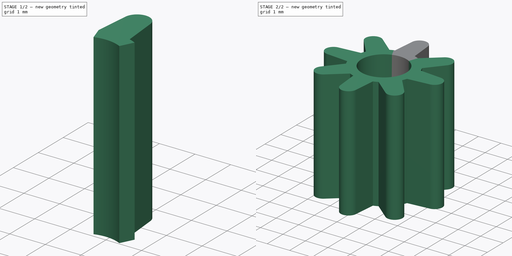
[diagram: build sequence overview — one tinted view per stage of 2, left to right]
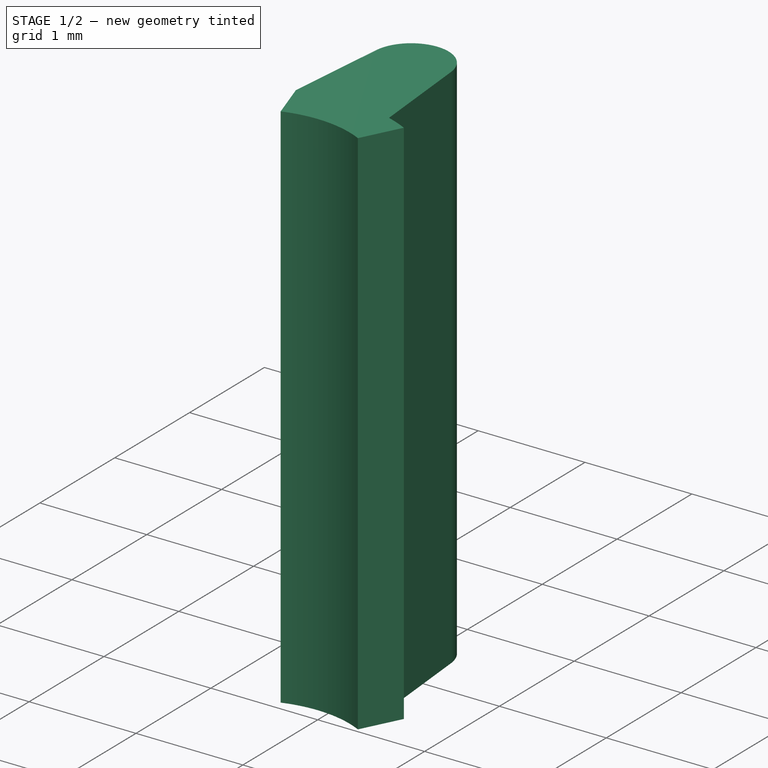
[diagram: stage 1 of 2 — iso view after this stage's code; geometry added in this stage tinted green]
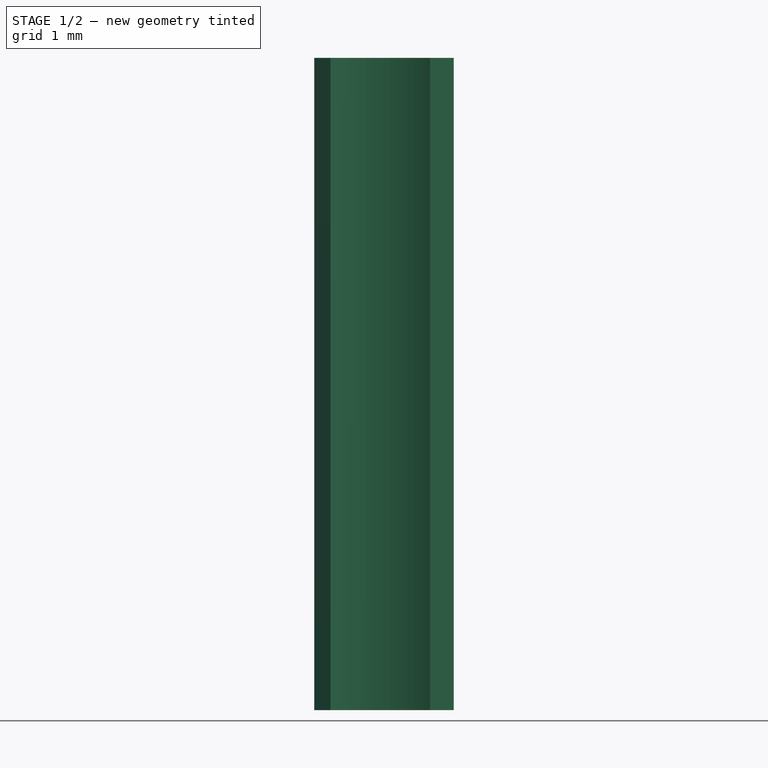
[diagram: stage 1 of 2 — front view after this stage's code; geometry added in this stage tinted green]
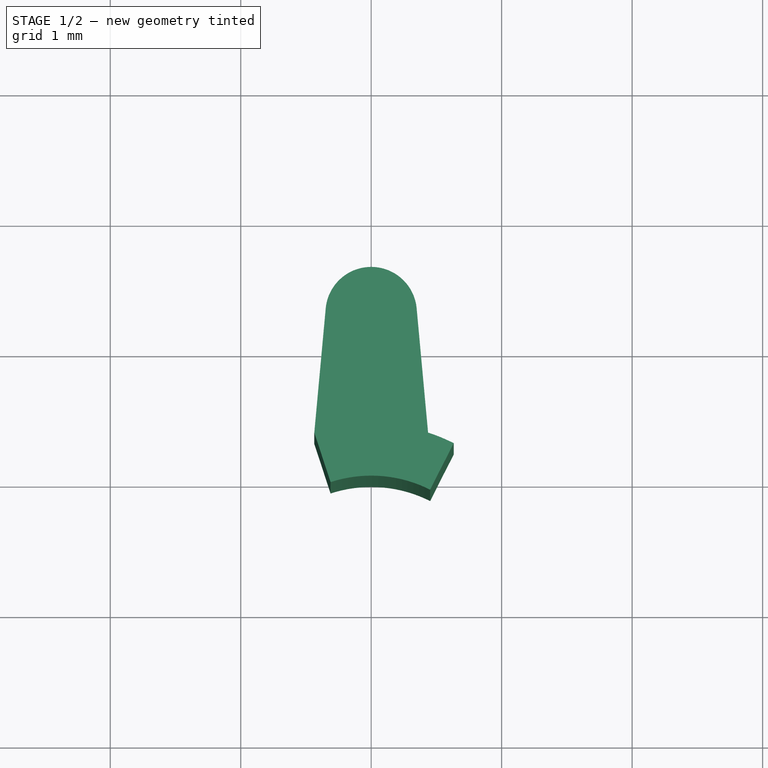
[diagram: stage 1 of 2 — top view after this stage's code; geometry added in this stage tinted green]
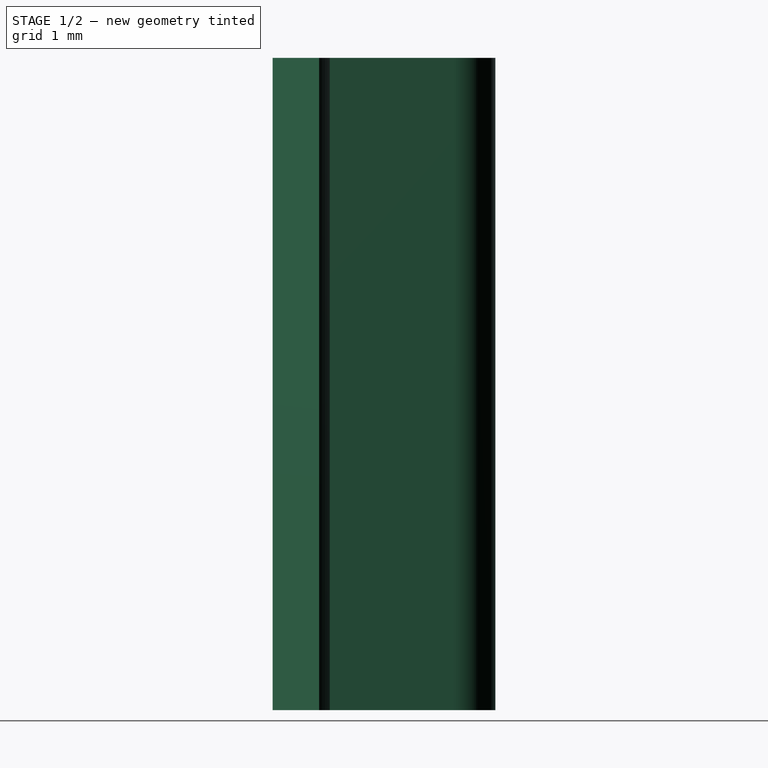
[diagram: stage 1 of 2 — right view after this stage's code; geometry added in this stage tinted green]
FCSTD DOCUMENT  (FreeCAD 0.20R29177 +426 (Git))
Label: Small Head Gear
License: All rights reserved
LicenseURL: http://en.wikipedia.org/wiki/All_rights_reserved
objects: Sketcher::SketchObject×1, PartDesign::Pad×1, PartDesign::PolarPattern×1, PartDesign::Body×1
note: 5 computed .brp shape members not serialized (recipe doc carries the construction recipe); baked Part::Feature solids carry a one-line shape summary decoded from their .brp

FEATURE [Sketcher::SketchObject] Sketch  label="Tooth Sketch"
  FullyConstrained = true
  MapMode = 5
  Support = -> [XY_Plane]
  sketch-geometry (9):
    g0: ArcOfCircle CenterX=0 CenterY=0 CenterZ=0 NormalX=0 NormalY=0 NormalZ=1 AngleXU=0 Radius=1 StartAngle=1.10208 EndAngle=1.88747
    g1: ArcOfCircle CenterX=0 CenterY=0 CenterZ=0 NormalX=0 NormalY=0 NormalZ=1 AngleXU=0 Radius=1.4 StartAngle=1.10208 EndAngle=1.25412
    g2: ArcOfCircle CenterX=0 CenterY=2.25 CenterZ=0 NormalX=0 NormalY=0 NormalZ=1 AngleXU=0 Radius=0.35 StartAngle=0.0916298 EndAngle=3.04996
    g3: LineSegment StartX=-0.348532 StartY=2.28203 StartZ=0 EndX=-0.435975 EndY=1.33039 EndZ=0
    g4: LineSegment StartX=0.348532 StartY=2.28203 StartZ=0 EndX=0.435975 EndY=1.33039 EndZ=0
    g5: LineSegment StartX=0 StartY=0 StartZ=0 EndX=-0.435975 EndY=1.33039 EndZ=0
    g6: LineSegment StartX=0 StartY=0 StartZ=0 EndX=0.632444 EndY=1.24901 EndZ=0
    g7: LineSegment StartX=-0.435975 StartY=1.33039 StartZ=0 EndX=-0.311411 EndY=0.950275 EndZ=0
    g8: LineSegment StartX=0.632444 StartY=1.24901 StartZ=0 EndX=0.451745 EndY=0.892147 EndZ=0
  constraints (23):
    c: Coincident(g0,g-1)
    c: Coincident(g1,g0)
    c: DistanceY(g0,g2) = 2.25  'Tooth Offset'
    c: Radius(g2) = 0.35  'Tooth Radius'
    c: Symmetric(g3,g4,g-2)
    c: Symmetric(g4,g3,g-2)
    c: Coincident(g5,g0)
    c: Coincident(g5,g3)
    c: Coincident(g6,g0)
    c: Angle(g6,g5) = 0.785398  'Tooth Angle'
    c: PointOnObject(g0,g5)
    c: PointOnObject(g0,g6)
    c: Radius(g0) = 1  'Tooth Inner Radius'
    c: Coincident(g2,g3)
    c: Tangent(g2,g4) = 1.5708
    c: Coincident(g1,g4)
    c: Coincident(g1,g6)
    c: Angle(g3,g4) = 0.18326
    c: Distance(g1,g0) = 0.4  'Tooth Thickness'
    c: Coincident(g7,g3)
    c: Coincident(g7,g0)
    c: Coincident(g8,g1)
    c: Coincident(g8,g0)
FEATURE [PartDesign::Pad] Pad  label="Tooth Pad"
  Direction = (0,0,1)
  Length = 5
  Length2 = 10
  Profile = -> Sketch
  ReferenceAxis = -> Sketch [N_Axis]
  Type = 0
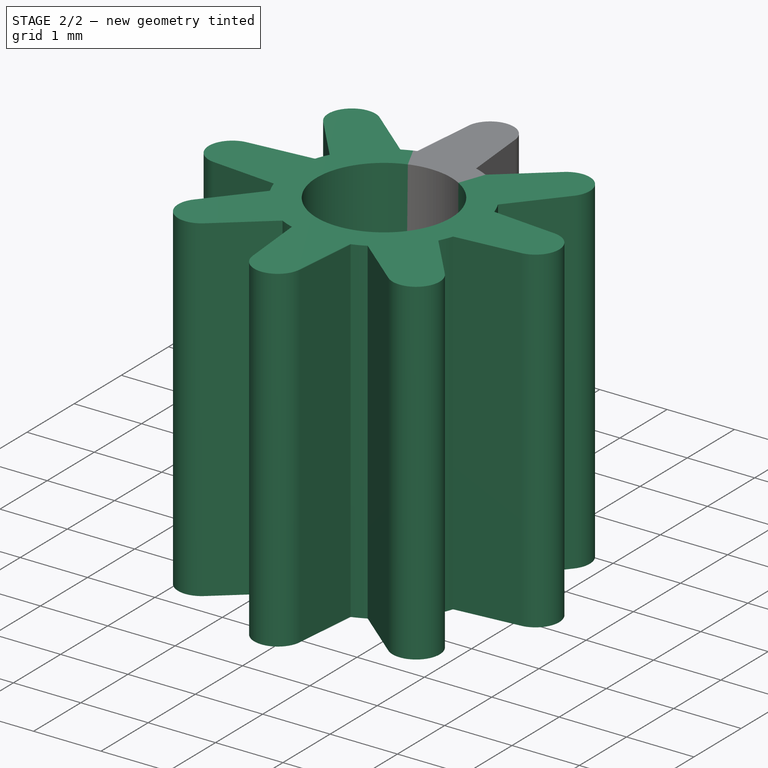
[diagram: stage 2 of 2 — iso view after this stage's code; geometry added in this stage tinted green]
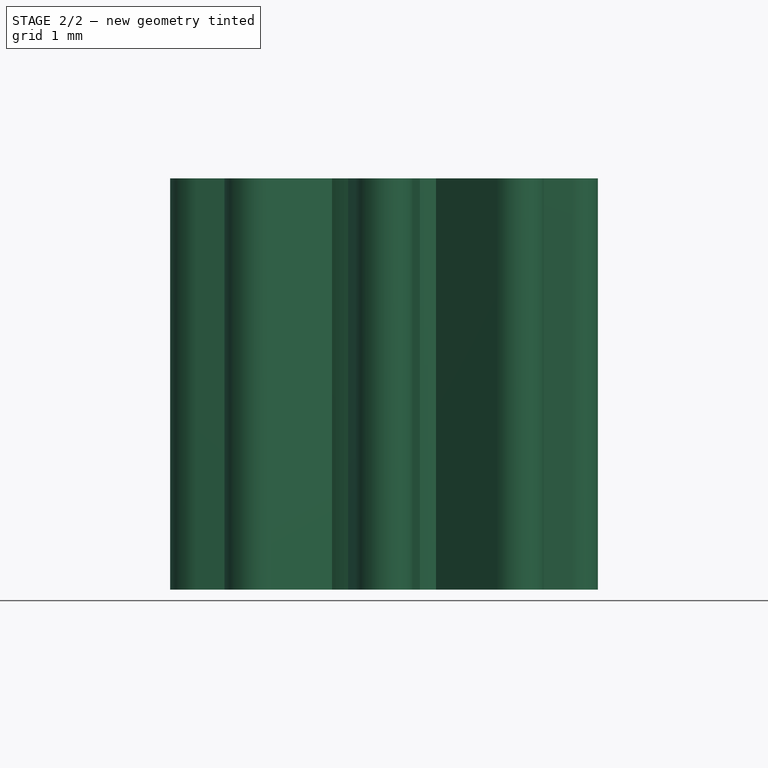
[diagram: stage 2 of 2 — front view after this stage's code; geometry added in this stage tinted green]
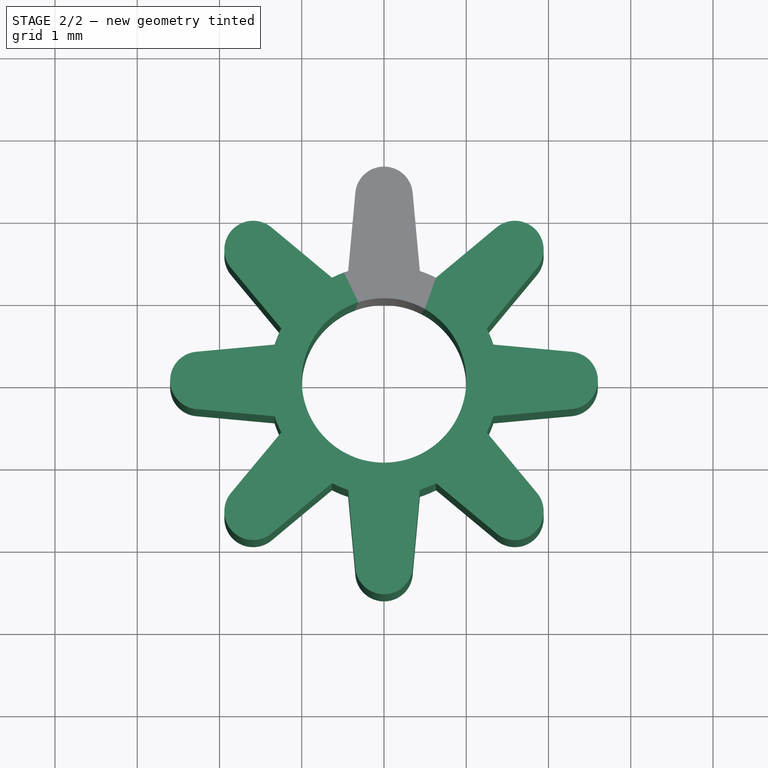
[diagram: stage 2 of 2 — top view after this stage's code; geometry added in this stage tinted green]
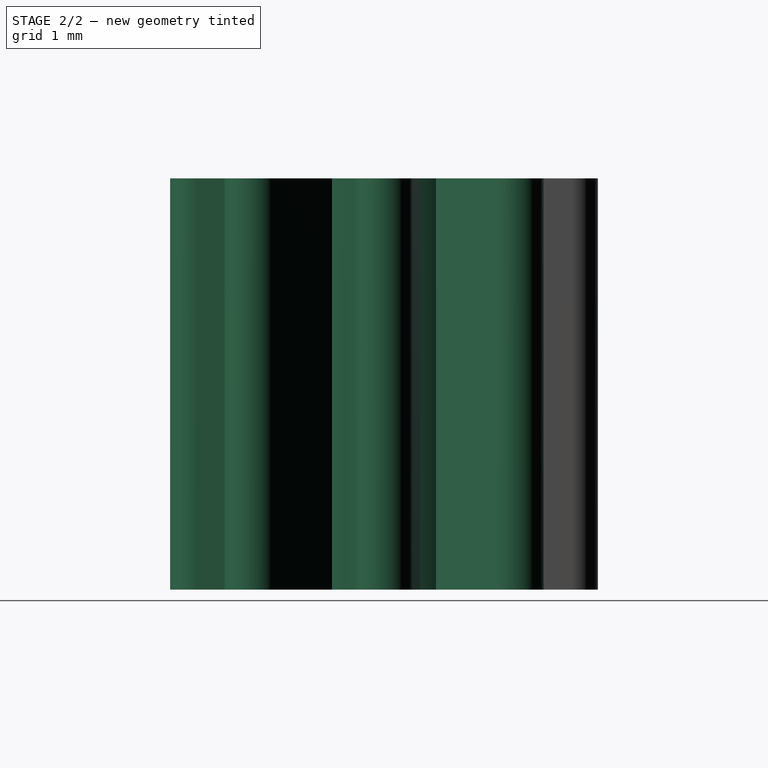
[diagram: stage 2 of 2 — right view after this stage's code; geometry added in this stage tinted green]
FEATURE [PartDesign::PolarPattern] PolarPattern  label="Gear Polar Pattern"
  Angle = 360
  Axis = -> Sketch [N_Axis]
  BaseFeature = -> Pad
  Occurrences = 8
  Originals = -> [Pad]
  Refine = true
FEATURE [PartDesign::Body] Body  label="Small Head Gear"
  Group = -> [Sketch,Pad,PolarPattern]
  Origin = -> Origin
  Tip = -> PolarPattern
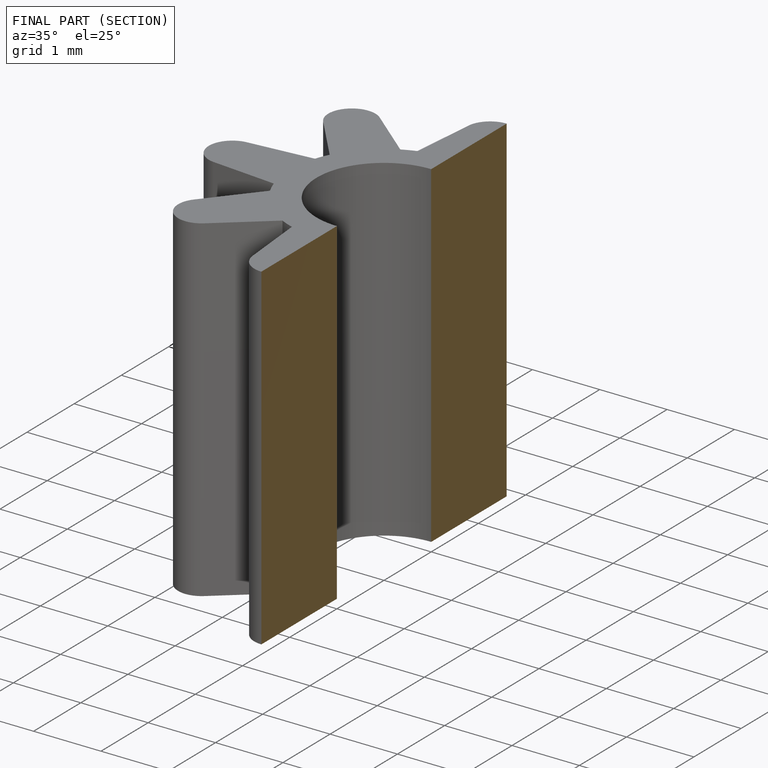
[diagram: finished part — half-section view (interior)]
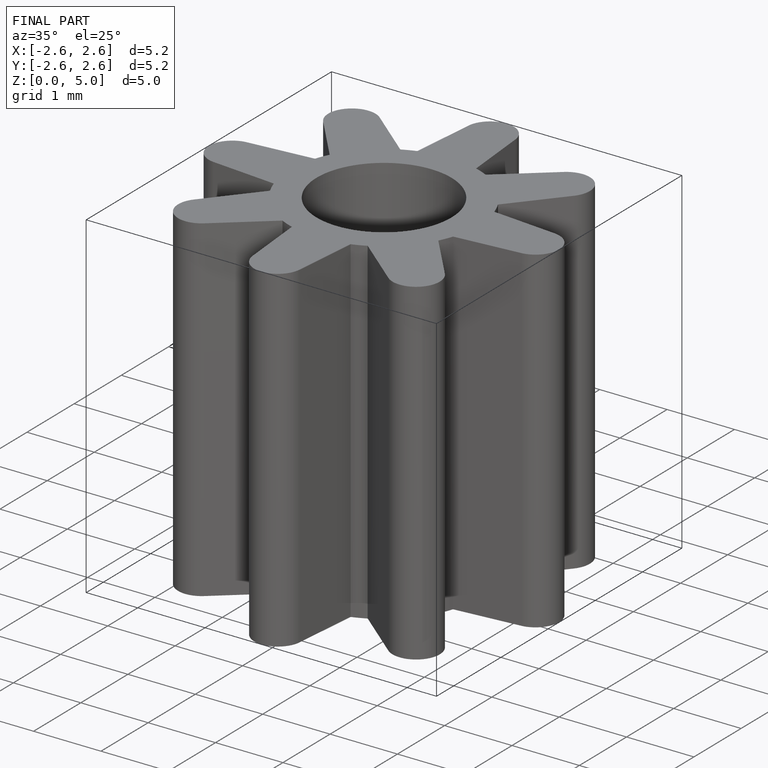
[diagram: finished part — iso view with bounding-box wireframe]
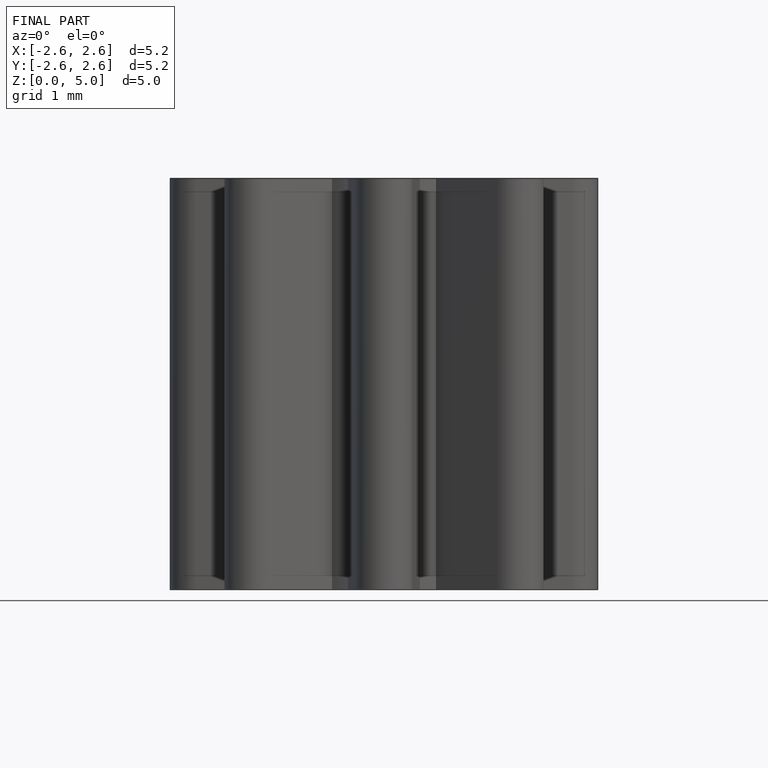
[diagram: finished part — front view with bounding-box wireframe]
